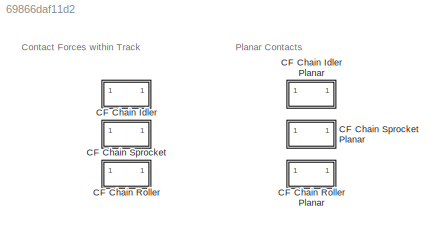
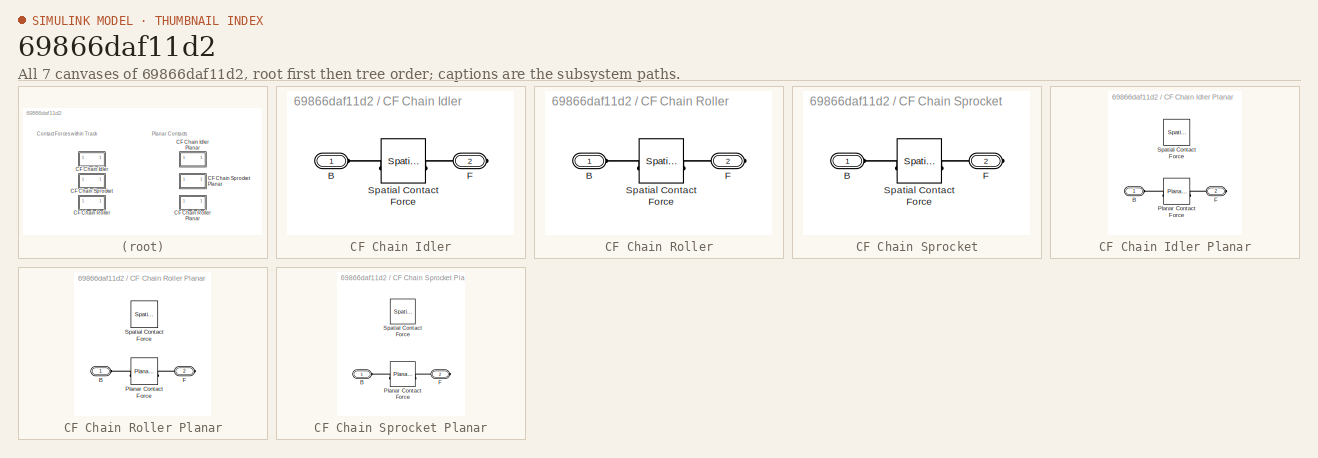
[diagram: thumbnail index - all 7 canvases of the model, root first then tree order]
MODEL slx_69866daf11d2
KIND library
CONFIG SolverName = VariableStepAuto
BLOCK [SubSystem] CF Chain Idler
  NameLocation = right
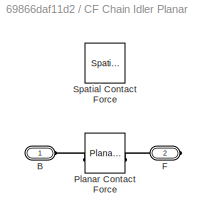
BLOCK [SubSystem] CF Chain Idler Planar
  NameLocation = right
BLOCK [PMIOPort] CF Chain Idler Planar/B
  Side = Left
BLOCK [PMIOPort] CF Chain Idler Planar/F
  Port = 2
  Side = Right
BLOCK [Reference] CF Chain Idler Planar/Planar Contact Force  REF=sm_lib/Forces and
Torques/Planar
Contact Force
  SourceBlock = sm_lib/Forces and\nTorques/Planar\nContact Force
  SourceType = Planar\nContact Force
BLOCK [Reference] CF Chain Idler Planar/Spatial Contact Force  REF=sm_lib/Forces and
Torques/Spatial
Contact Force
  SourceBlock = sm_lib/Forces and\nTorques/Spatial\nContact Force
  SourceType = Spatial\nContact Force
BLOCK [PMIOPort] CF Chain Idler/B
  Side = Left
BLOCK [PMIOPort] CF Chain Idler/F
  Port = 2
  Side = Right
BLOCK [Reference] CF Chain Idler/Spatial Contact Force  REF=sm_lib/Forces and
Torques/Spatial
Contact Force
  SourceBlock = sm_lib/Forces and\nTorques/Spatial\nContact Force
  SourceType = Spatial\nContact Force
BLOCK [SubSystem] CF Chain Roller
  NameLocation = right
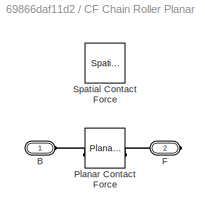
BLOCK [SubSystem] CF Chain Roller Planar
  NameLocation = right
BLOCK [PMIOPort] CF Chain Roller Planar/B
  Side = Left
BLOCK [PMIOPort] CF Chain Roller Planar/F
  Port = 2
  Side = Right
BLOCK [Reference] CF Chain Roller Planar/Planar Contact Force  REF=sm_lib/Forces and
Torques/Planar
Contact Force
  SourceBlock = sm_lib/Forces and\nTorques/Planar\nContact Force
  SourceType = Planar\nContact Force
BLOCK [Reference] CF Chain Roller Planar/Spatial Contact Force  REF=sm_lib/Forces and
Torques/Spatial
Contact Force
  SourceBlock = sm_lib/Forces and\nTorques/Spatial\nContact Force
  SourceType = Spatial\nContact Force
BLOCK [PMIOPort] CF Chain Roller/B
  Side = Left
BLOCK [PMIOPort] CF Chain Roller/F
  Port = 2
  Side = Right
BLOCK [Reference] CF Chain Roller/Spatial Contact Force  REF=sm_lib/Forces and
Torques/Spatial
Contact Force
  SourceBlock = sm_lib/Forces and\nTorques/Spatial\nContact Force
  SourceType = Spatial\nContact Force
BLOCK [SubSystem] CF Chain Sprocket
  NameLocation = right
BLOCK [SubSystem] CF Chain Sprocket Planar
  NameLocation = right
BLOCK [PMIOPort] CF Chain Sprocket Planar/B
  Side = Left
BLOCK [PMIOPort] CF Chain Sprocket Planar/F
  Port = 2
  Side = Right
BLOCK [Reference] CF Chain Sprocket Planar/Planar Contact Force  REF=sm_lib/Forces and
Torques/Planar
Contact Force
  SourceBlock = sm_lib/Forces and\nTorques/Planar\nContact Force
  SourceType = Planar\nContact Force
BLOCK [Reference] CF Chain Sprocket Planar/Spatial Contact Force  REF=sm_lib/Forces and
Torques/Spatial
Contact Force
  SourceBlock = sm_lib/Forces and\nTorques/Spatial\nContact Force
  SourceType = Spatial\nContact Force
BLOCK [PMIOPort] CF Chain Sprocket/B
  Side = Left
BLOCK [PMIOPort] CF Chain Sprocket/F
  Port = 2
  Side = Right
BLOCK [Reference] CF Chain Sprocket/Spatial Contact Force  REF=sm_lib/Forces and
Torques/Spatial
Contact Force
  SourceBlock = sm_lib/Forces and\nTorques/Spatial\nContact Force
  SourceType = Spatial\nContact Force
ANNOTATION (root): Contact Forces within Track
ANNOTATION (root): Planar Contacts
PLINE CF Chain Idler Planar/B:RConn1 -- CF Chain Idler Planar/Planar Contact Force:LConn1
PLINE CF Chain Idler Planar/F:RConn1 -- CF Chain Idler Planar/Planar Contact Force:RConn1
PLINE CF Chain Idler/B:RConn1 -- CF Chain Idler/Spatial Contact Force:LConn1
PLINE CF Chain Idler/F:RConn1 -- CF Chain Idler/Spatial Contact Force:RConn1
PLINE CF Chain Roller Planar/B:RConn1 -- CF Chain Roller Planar/Planar Contact Force:LConn1
PLINE CF Chain Roller Planar/F:RConn1 -- CF Chain Roller Planar/Planar Contact Force:RConn1
PLINE CF Chain Roller/B:RConn1 -- CF Chain Roller/Spatial Contact Force:LConn1
PLINE CF Chain Roller/F:RConn1 -- CF Chain Roller/Spatial Contact Force:RConn1
PLINE CF Chain Sprocket Planar/B:RConn1 -- CF Chain Sprocket Planar/Planar Contact Force:LConn1
PLINE CF Chain Sprocket Planar/F:RConn1 -- CF Chain Sprocket Planar/Planar Contact Force:RConn1
PLINE CF Chain Sprocket/B:RConn1 -- CF Chain Sprocket/Spatial Contact Force:LConn1
PLINE CF Chain Sprocket/F:RConn1 -- CF Chain Sprocket/Spatial Contact Force:RConn1
